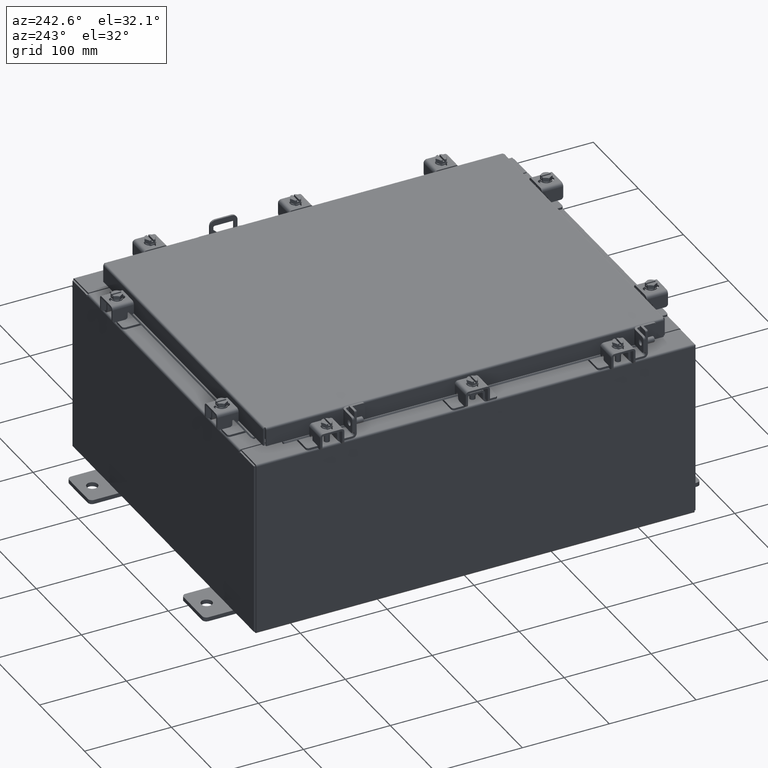
[diagram: clean part render]
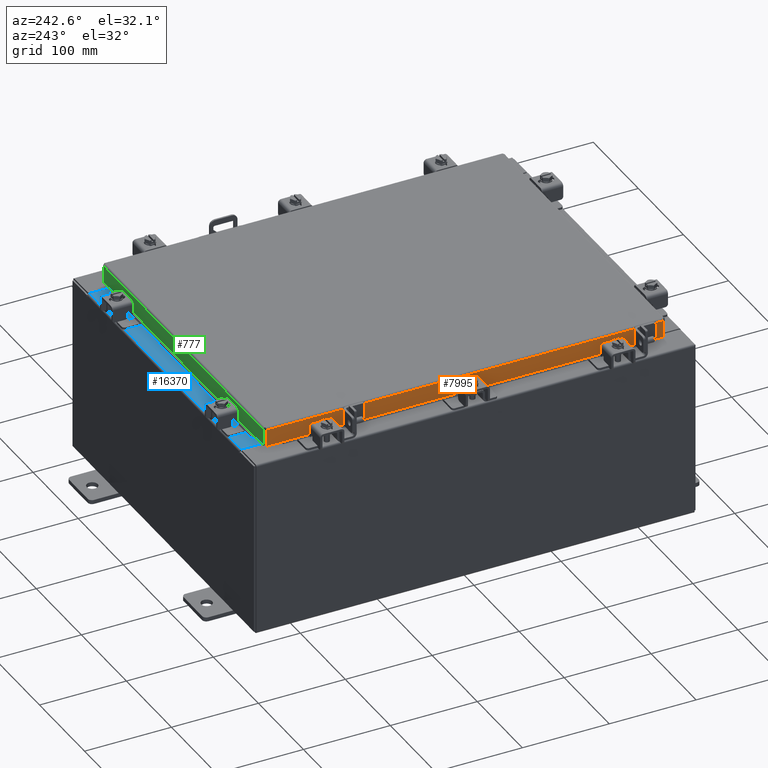
[diagram: same view with three faces highlighted in distinct colors, each labeled with its STEP entity id]
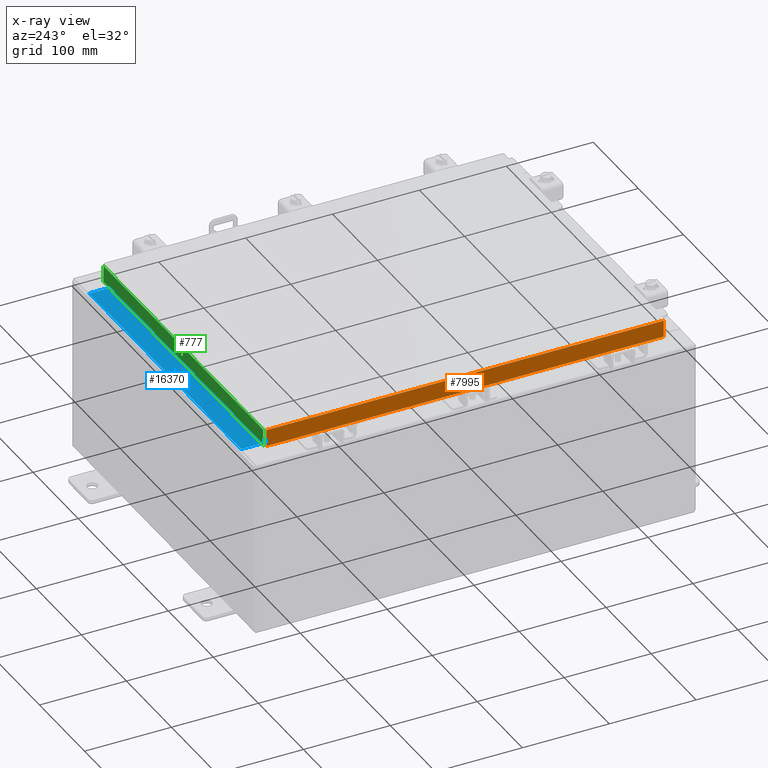
[diagram: x-ray of the same camera — body ghosted, the three highlighted faces saturated]
A machine part, auxiliary view with three faces highlighted in distinct colors.
The next image is the same camera in x-ray (body ghosted, the three faces saturated) — at least one of them is partly hidden behind the body in this view.
Their STEP definitions:

[orange] entity #7995 — the highlighted planar face has unit normal (1, 0, -0).
#640 = CARTESIAN_POINT ( 'NONE',  ( -7.078000000000001200, -8.255157864376261800, -0.8500000000000023100 ) ) ;
#760 = EDGE_CURVE ( 'NONE', #2306, #3674, #2851, .T. ) ;
#792 = VERTEX_POINT ( 'NONE', #640 ) ;
#1859 = AXIS2_PLACEMENT_3D ( 'NONE', #3006, #8362, #20492 ) ;
#2306 = VERTEX_POINT ( 'NONE', #14929 ) ;
#2785 = VERTEX_POINT ( 'NONE', #21802 ) ;
#2851 = LINE ( 'NONE', #10241, #11566 ) ;
#3006 = CARTESIAN_POINT ( 'NONE',  ( -7.078000000000003800, -2.397446165233042600E-030, 2.021285296895435800E-014 ) ) ;
#3047 = EDGE_CURVE ( 'NONE', #3674, #10844, #6799, .T. ) ;
#3674 = VERTEX_POINT ( 'NONE', #14495 ) ;
#3951 = EDGE_CURVE ( 'NONE', #2785, #10698, #13522, .T. ) ;
#4102 = EDGE_CURVE ( 'NONE', #2306, #10698, #19506, .T. ) ;
#4152 = ORIENTED_EDGE ( 'NONE', *, *, #4959, .F. ) ;
#4959 = EDGE_CURVE ( 'NONE', #792, #2785, #13781, .T. ) ;
#6140 = CARTESIAN_POINT ( 'NONE',  ( -7.078000000000005600, -9.005157864376265300, -0.8499999999999996400 ) ) ;
#6799 = LINE ( 'NONE', #10249, #11401 ) ;
#7995 = ADVANCED_FACE ( 'NONE', ( #15124 ), #13492, .F. ) ;
#8362 = DIRECTION ( 'NONE',  ( 1.000000000000000000, 3.387180227794633400E-031, -2.818880942772360100E-015 ) ) ;
#8898 = CARTESIAN_POINT ( 'NONE',  ( -7.078000000000003800, 9.005157864376265300, 8.309553424256679200E-014 ) ) ;
#9664 = ORIENTED_EDGE ( 'NONE', *, *, #3047, .F. ) ;
#10234 = DIRECTION ( 'NONE',  ( 4.379057701015054300E-047, 1.000000000000000000, 1.201604571657912400E-016 ) ) ;
#10241 = CARTESIAN_POINT ( 'NONE',  ( -7.078000000000003800, -9.094000000000003000, -0.08770000000000007000 ) ) ;
#10249 = CARTESIAN_POINT ( 'NONE',  ( -7.078000000000003800, -9.005157864376270600, -0.07469999999999978000 ) ) ;
#10253 = VECTOR ( 'NONE', #17620, 39.37007874015748100 ) ;
#10698 = VERTEX_POINT ( 'NONE', #10986 ) ;
#10840 = CARTESIAN_POINT ( 'NONE',  ( -7.078000000000005600, -9.094000000000003000, -0.8499999999999996400 ) ) ;
#10844 = VERTEX_POINT ( 'NONE', #6140 ) ;
#10986 = CARTESIAN_POINT ( 'NONE',  ( -7.078000000000005600, 9.005157864376270600, -0.8499999999999975400 ) ) ;
#11401 = VECTOR ( 'NONE', #17181, 39.37007874015748100 ) ;
#11518 = DIRECTION ( 'NONE',  ( -0.0000000000000000000, 1.000000000000000000, -0.0000000000000000000 ) ) ;
#11566 = VECTOR ( 'NONE', #22083, 39.37007874015748100 ) ;
#11997 = CARTESIAN_POINT ( 'NONE',  ( -7.078000000000005600, -9.094000000000003000, -0.8499999999999996400 ) ) ;
#13492 = PLANE ( 'NONE',  #1859 ) ;
#13522 = LINE ( 'NONE', #11997, #17057 ) ;
#13781 = LINE ( 'NONE', #21903, #18429 ) ;
#14495 = CARTESIAN_POINT ( 'NONE',  ( -7.078000000000003800, -9.005157864376270600, -0.08770000000000007000 ) ) ;
#14616 = ORIENTED_EDGE ( 'NONE', *, *, #4102, .T. ) ;
#14918 = ORIENTED_EDGE ( 'NONE', *, *, #16678, .F. ) ;
#14929 = CARTESIAN_POINT ( 'NONE',  ( -7.078000000000003800, 9.005157864376265300, -0.08770000000000007000 ) ) ;
#15124 = FACE_OUTER_BOUND ( 'NONE', #21993, .T. ) ;
#16678 = EDGE_CURVE ( 'NONE', #10844, #792, #17730, .T. ) ;
#17057 = VECTOR ( 'NONE', #10234, 39.37007874015748100 ) ;
#17181 = DIRECTION ( 'NONE',  ( -2.818880942772360100E-015, 6.982962677686265900E-015, -1.000000000000000000 ) ) ;
#17620 = DIRECTION ( 'NONE',  ( -2.818880942772360100E-015, 6.982962677686265900E-015, -1.000000000000000000 ) ) ;
#17730 = LINE ( 'NONE', #10840, #21247 ) ;
#18429 = VECTOR ( 'NONE', #11518, 39.37007874015748100 ) ;
#19506 = LINE ( 'NONE', #8898, #10253 ) ;
#20058 = ORIENTED_EDGE ( 'NONE', *, *, #3951, .F. ) ;
#20492 = DIRECTION ( 'NONE',  ( -2.818880942772360100E-015, 0.0000000000000000000, -1.000000000000000000 ) ) ;
#21179 = DIRECTION ( 'NONE',  ( 4.379057701015054300E-047, 1.000000000000000000, 1.201604571657912400E-016 ) ) ;
#21247 = VECTOR ( 'NONE', #21179, 39.37007874015748100 ) ;
#21802 = CARTESIAN_POINT ( 'NONE',  ( -7.078000000000001200, 8.255157864376267100, -0.8500000000000023100 ) ) ;
#21903 = CARTESIAN_POINT ( 'NONE',  ( -7.078000000000001200, -8.255157864376263500, -0.8500000000000023100 ) ) ;
#21993 = EDGE_LOOP ( 'NONE', ( #22362, #14616, #20058, #4152, #14918, #9664 ) ) ;
#22083 = DIRECTION ( 'NONE',  ( 3.387180227794633400E-031, -1.000000000000000000, -9.232666117091638000E-046 ) ) ;
#22362 = ORIENTED_EDGE ( 'NONE', *, *, #760, .F. ) ;

[blue] entity #16370 — the highlighted planar face has unit normal (0, 0, 1).
#1025 = DIRECTION ( 'NONE',  ( 0.0000000000000000000, -1.000000000000000000, 3.566381192773190000E-015 ) ) ;
#1070 = AXIS2_PLACEMENT_3D ( 'NONE', #9570, #11456, #1025 ) ;
#2720 = EDGE_CURVE ( 'NONE', #15158, #7170, #17399, .T. ) ;
#2957 = VECTOR ( 'NONE', #19867, 39.37007874015748100 ) ;
#3470 = CARTESIAN_POINT ( 'NONE',  ( -6.637200000000000000, -0.08770000000000026400, 3.999999999999999600 ) ) ;
#3821 = CARTESIAN_POINT ( 'NONE',  ( 0.0000000000000000000, -0.08770000000000026400, 4.000000000000000000 ) ) ;
#4006 = DIRECTION ( 'NONE',  ( -0.0000000000000000000, -1.000000000000000000, 3.566381192773190000E-015 ) ) ;
#4103 = VECTOR ( 'NONE', #14218, 39.37007874015748100 ) ;
#4791 = CARTESIAN_POINT ( 'NONE',  ( 6.637200000000000900, -1.287299999999999900, 4.000000000000003600 ) ) ;
#5386 = EDGE_CURVE ( 'NONE', #9222, #7170, #8764, .T. ) ;
#5699 = EDGE_CURVE ( 'NONE', #14281, #15158, #16060, .T. ) ;
#6212 = ORIENTED_EDGE ( 'NONE', *, *, #5386, .T. ) ;
#6572 = DIRECTION ( 'NONE',  ( -1.000000000000000000, 0.0000000000000000000, 0.0000000000000000000 ) ) ;
#7170 = VERTEX_POINT ( 'NONE', #3470 ) ;
#7712 = CARTESIAN_POINT ( 'NONE',  ( -6.637200000000000000, -0.07469999999999973900, 3.999999999999999600 ) ) ;
#8764 = LINE ( 'NONE', #3821, #4103 ) ;
#9222 = VERTEX_POINT ( 'NONE', #20122 ) ;
#9570 = CARTESIAN_POINT ( 'NONE',  ( 0.0000000000000000000, 1.425992975200418200E-014, 3.999999999999999600 ) ) ;
#10297 = VECTOR ( 'NONE', #4006, 39.37007874015748100 ) ;
#11456 = DIRECTION ( 'NONE',  ( 0.0000000000000000000, 3.566381192773190000E-015, 1.000000000000000000 ) ) ;
#12480 = CARTESIAN_POINT ( 'NONE',  ( 6.637200000000000000, -1.287299999999999900, 4.000000000000003600 ) ) ;
#12769 = ORIENTED_EDGE ( 'NONE', *, *, #18341, .F. ) ;
#13542 = CARTESIAN_POINT ( 'NONE',  ( -6.637200000000000000, -1.287299999999999200, 4.000000000000003600 ) ) ;
#14218 = DIRECTION ( 'NONE',  ( -1.000000000000000000, 0.0000000000000000000, 0.0000000000000000000 ) ) ;
#14281 = VERTEX_POINT ( 'NONE', #12480 ) ;
#15158 = VERTEX_POINT ( 'NONE', #13542 ) ;
#16060 = LINE ( 'NONE', #4791, #20678 ) ;
#16370 = ADVANCED_FACE ( 'NONE', ( #21478 ), #18372, .T. ) ;
#17399 = LINE ( 'NONE', #7712, #2957 ) ;
#17570 = ORIENTED_EDGE ( 'NONE', *, *, #2720, .F. ) ;
#18008 = EDGE_LOOP ( 'NONE', ( #17570, #21680, #12769, #6212 ) ) ;
#18341 = EDGE_CURVE ( 'NONE', #9222, #14281, #19554, .T. ) ;
#18372 = PLANE ( 'NONE',  #1070 ) ;
#19554 = LINE ( 'NONE', #19623, #10297 ) ;
#19623 = CARTESIAN_POINT ( 'NONE',  ( 6.637200000000000000, -1.300299999999999800, 4.000000000000003600 ) ) ;
#19867 = DIRECTION ( 'NONE',  ( -0.0000000000000000000, 1.000000000000000000, -3.566381192773190000E-015 ) ) ;
#20122 = CARTESIAN_POINT ( 'NONE',  ( 6.637199999999999100, -0.08769999999999993100, 3.999999999999999600 ) ) ;
#20678 = VECTOR ( 'NONE', #6572, 39.37007874015748100 ) ;
#21478 = FACE_OUTER_BOUND ( 'NONE', #18008, .T. ) ;
#21680 = ORIENTED_EDGE ( 'NONE', *, *, #5699, .F. ) ;

[green] entity #777 — the highlighted planar face has unit normal (0, -1, -0).
#242 = EDGE_LOOP ( 'NONE', ( #17526, #18671, #17089, #3213, #1088, #18690 ) ) ;
#665 = VERTEX_POINT ( 'NONE', #14734 ) ;
#777 = ADVANCED_FACE ( 'NONE', ( #2315 ), #8213, .F. ) ;
#931 = LINE ( 'NONE', #19371, #18357 ) ;
#1088 = ORIENTED_EDGE ( 'NONE', *, *, #12739, .F. ) ;
#1317 = LINE ( 'NONE', #6518, #15205 ) ;
#1397 = LINE ( 'NONE', #14150, #18826 ) ;
#1917 = VECTOR ( 'NONE', #3573, 39.37007874015748100 ) ;
#2315 = FACE_OUTER_BOUND ( 'NONE', #242, .T. ) ;
#3022 = LINE ( 'NONE', #5009, #20450 ) ;
#3213 = ORIENTED_EDGE ( 'NONE', *, *, #16737, .F. ) ;
#3573 = DIRECTION ( 'NONE',  ( 0.0000000000000000000, 2.818880942772353800E-015, -1.000000000000000000 ) ) ;
#4693 = VERTEX_POINT ( 'NONE', #7399 ) ;
#4929 = CARTESIAN_POINT ( 'NONE',  ( -6.989157864376273300, 9.093999999999999400, -0.8500000000000014200 ) ) ;
#5009 = CARTESIAN_POINT ( 'NONE',  ( -6.989157864376273300, 9.093999999999995900, -0.07469999999999978000 ) ) ;
#6319 = DIRECTION ( 'NONE',  ( 3.535949605205710500E-031, -1.000000000000000000, -2.818880942772353800E-015 ) ) ;
#6518 = CARTESIAN_POINT ( 'NONE',  ( -7.078000000000003800, 9.093999999999999400, -0.8500000000000014200 ) ) ;
#7138 = LINE ( 'NONE', #13979, #1917 ) ;
#7399 = CARTESIAN_POINT ( 'NONE',  ( 6.989157864376266200, 9.093999999999995900, -0.08769999999999897300 ) ) ;
#7419 = VECTOR ( 'NONE', #21314, 39.37007874015748100 ) ;
#8213 = PLANE ( 'NONE',  #9735 ) ;
#8477 = DIRECTION ( 'NONE',  ( -0.0000000000000000000, 2.818880942772353800E-015, -1.000000000000000000 ) ) ;
#9026 = DIRECTION ( 'NONE',  ( -1.000000000000000000, -1.359980617386811900E-031, -7.719265311286419400E-017 ) ) ;
#9735 = AXIS2_PLACEMENT_3D ( 'NONE', #11167, #6319, #17063 ) ;
#10921 = CARTESIAN_POINT ( 'NONE',  ( -6.239157864376272400, 9.093999999999999400, -0.8500000000000018700 ) ) ;
#11167 = CARTESIAN_POINT ( 'NONE',  ( -3.215592570974071400E-030, 9.093999999999995900, 2.589571694958335700E-014 ) ) ;
#11457 = LINE ( 'NONE', #10921, #7419 ) ;
#12313 = CARTESIAN_POINT ( 'NONE',  ( -6.239157864376272400, 9.093999999999999400, -0.8500000000000018700 ) ) ;
#12739 = EDGE_CURVE ( 'NONE', #18136, #19477, #931, .T. ) ;
#13979 = CARTESIAN_POINT ( 'NONE',  ( 6.989157864376265300, 9.093999999999995900, 2.589571694958335700E-014 ) ) ;
#14150 = CARTESIAN_POINT ( 'NONE',  ( -7.078000000000003800, 9.093999999999995900, -0.08770000000000007000 ) ) ;
#14251 = EDGE_CURVE ( 'NONE', #4693, #22405, #1397, .T. ) ;
#14525 = CARTESIAN_POINT ( 'NONE',  ( -6.989157864376273300, 9.093999999999995900, -0.08769999999999951400 ) ) ;
#14734 = CARTESIAN_POINT ( 'NONE',  ( 6.239157864376261700, 9.093999999999999400, -0.8500000000000018700 ) ) ;
#14819 = EDGE_CURVE ( 'NONE', #22405, #18136, #3022, .T. ) ;
#15205 = VECTOR ( 'NONE', #18639, 39.37007874015748100 ) ;
#15303 = EDGE_CURVE ( 'NONE', #4693, #16844, #7138, .T. ) ;
#16475 = EDGE_CURVE ( 'NONE', #665, #16844, #1317, .T. ) ;
#16737 = EDGE_CURVE ( 'NONE', #19477, #665, #11457, .T. ) ;
#16844 = VERTEX_POINT ( 'NONE', #18059 ) ;
#17063 = DIRECTION ( 'NONE',  ( 0.0000000000000000000, 2.818880942772353800E-015, -1.000000000000000000 ) ) ;
#17089 = ORIENTED_EDGE ( 'NONE', *, *, #16475, .F. ) ;
#17526 = ORIENTED_EDGE ( 'NONE', *, *, #14251, .F. ) ;
#18059 = CARTESIAN_POINT ( 'NONE',  ( 6.989157864376266200, 9.093999999999999400, -0.8499999999999996400 ) ) ;
#18136 = VERTEX_POINT ( 'NONE', #4929 ) ;
#18357 = VECTOR ( 'NONE', #21118, 39.37007874015748100 ) ;
#18639 = DIRECTION ( 'NONE',  ( 1.000000000000000000, 4.379057701015054300E-047, 1.254380613084043100E-016 ) ) ;
#18671 = ORIENTED_EDGE ( 'NONE', *, *, #15303, .T. ) ;
#18690 = ORIENTED_EDGE ( 'NONE', *, *, #14819, .F. ) ;
#18826 = VECTOR ( 'NONE', #9026, 39.37007874015748100 ) ;
#19371 = CARTESIAN_POINT ( 'NONE',  ( -7.078000000000003800, 9.093999999999999400, -0.8500000000000014200 ) ) ;
#19477 = VERTEX_POINT ( 'NONE', #12313 ) ;
#20450 = VECTOR ( 'NONE', #8477, 39.37007874015748100 ) ;
#21118 = DIRECTION ( 'NONE',  ( 1.000000000000000000, 4.379057701015054300E-047, 1.254380613084043100E-016 ) ) ;
#21314 = DIRECTION ( 'NONE',  ( 1.000000000000000000, -0.0000000000000000000, -0.0000000000000000000 ) ) ;
#22405 = VERTEX_POINT ( 'NONE', #14525 ) ;